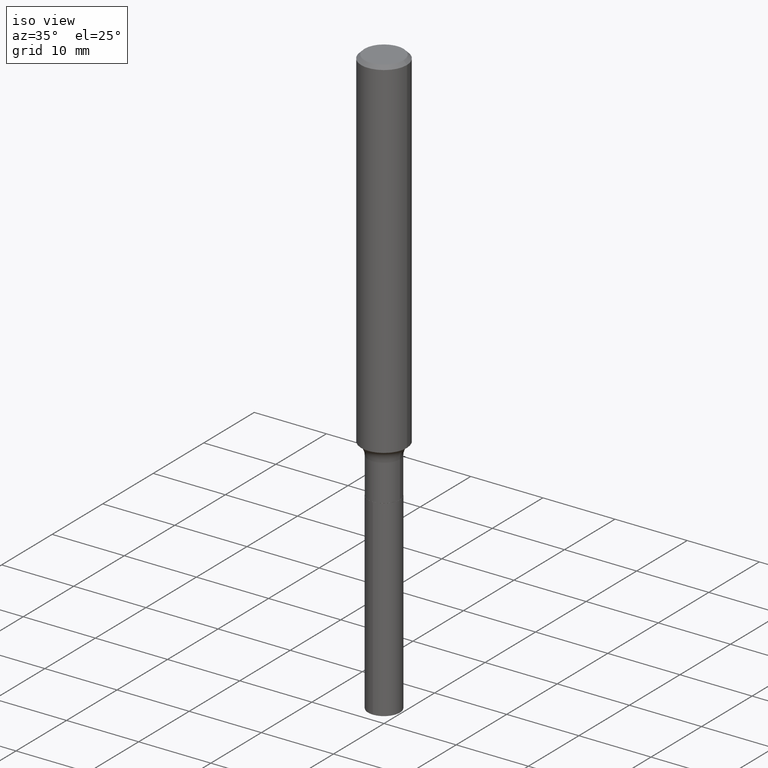
[diagram: clean part render]
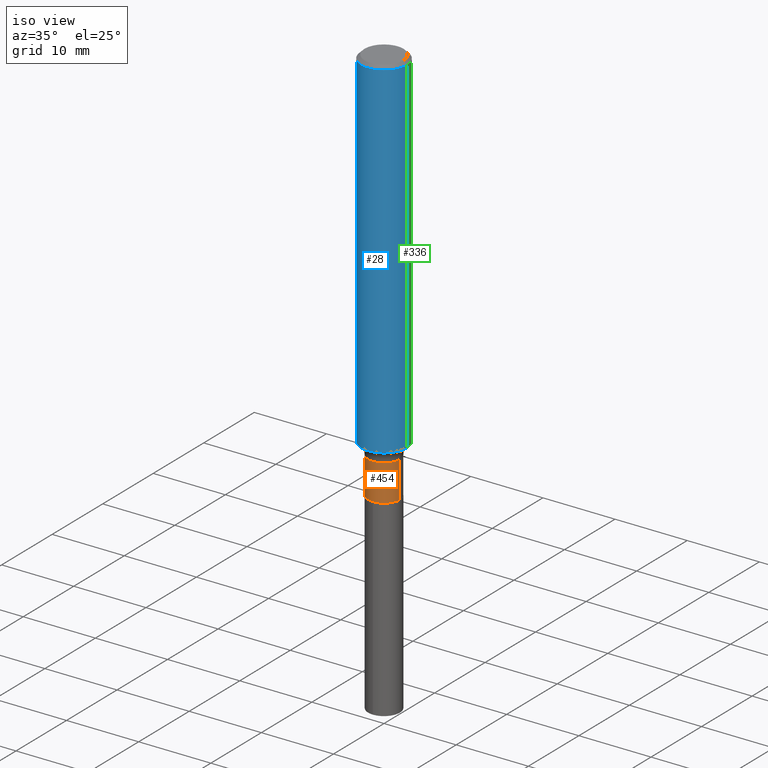
[diagram: same view with three faces highlighted in distinct colors, each labeled with its STEP entity id]
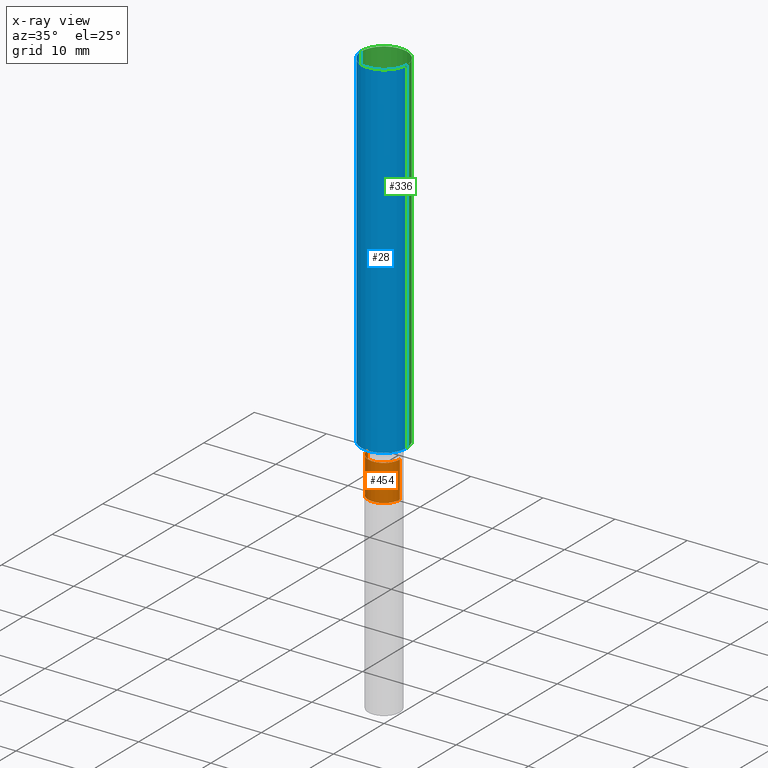
[diagram: x-ray of the same camera — body ghosted, the three highlighted faces saturated]
A machine part, iso view with three faces highlighted in distinct colors.
The next image is the same camera in x-ray (body ghosted, the three faces saturated) — at least one of them is partly hidden behind the body in this view.
Their STEP definitions:

[orange] entity #454 — the highlighted cylindrical surface (edge-blend (fillet) strip) has radius 2.1971 mm, axis along (-0, 0, 1).
#7 = DIRECTION ( 'NONE',  ( -2.445468806185136597E-29, 3.491481338843145583E-15, 1.000000000000000000 ) ) ;
#25 = DIRECTION ( 'NONE',  ( 1.000000000000000000, -6.982962677686266711E-15, 4.876176775795935793E-29 ) ) ;
#32 = CARTESIAN_POINT ( 'NONE',  ( -0.08649999999999997968, 6.146194664324865164E-16, -4.254878853070492988E-30 ) ) ;
#46 = FACE_OUTER_BOUND ( 'NONE', #347, .T. ) ;
#61 = CARTESIAN_POINT ( 'NONE',  ( 5.312780981437210108E-29, -7.585243208636733562E-15, -2.172500000000000320 ) ) ;
#64 = DIRECTION ( 'NONE',  ( -2.445468806185136877E-29, 3.491481338843145188E-15, 1.000000000000000000 ) ) ;
#76 = AXIS2_PLACEMENT_3D ( 'NONE', #317, #101, #213 ) ;
#85 = VERTEX_POINT ( 'NONE', #328 ) ;
#94 = VERTEX_POINT ( 'NONE', #207 ) ;
#101 = DIRECTION ( 'NONE',  ( -2.445468806185136597E-29, 3.491481338843145583E-15, 1.000000000000000000 ) ) ;
#107 = CARTESIAN_POINT ( 'NONE',  ( 0.08649999999999997968, -6.040262716198619285E-16, 4.217892911063483312E-30 ) ) ;
#138 = EDGE_CURVE ( 'NONE', #94, #194, #290, .T. ) ;
#171 = EDGE_CURVE ( 'NONE', #85, #459, #240, .T. ) ;
#192 = VECTOR ( 'NONE', #64, 39.37007874015748143 ) ;
#194 = VERTEX_POINT ( 'NONE', #286 ) ;
#196 = CYLINDRICAL_SURFACE ( 'NONE', #269, 0.08649999999999997968 ) ;
#199 = EDGE_CURVE ( 'NONE', #459, #194, #279, .T. ) ;
#207 = CARTESIAN_POINT ( 'NONE',  ( -0.08649999999999996581, -6.624094219324065275E-15, -1.973999999999999977 ) ) ;
#213 = DIRECTION ( 'NONE',  ( 1.000000000000000000, -6.982962677686261977E-15, 0.000000000000000000 ) ) ;
#240 = CIRCLE ( 'NONE', #304, 0.08649999999999997968 ) ;
#242 = DIRECTION ( 'NONE',  ( -2.445468806185136877E-29, 3.491481338843145188E-15, 1.000000000000000000 ) ) ;
#269 = AXIS2_PLACEMENT_3D ( 'NONE', #341, #7, #25 ) ;
#274 = VECTOR ( 'NONE', #242, 39.37007874015748143 ) ;
#277 = ORIENTED_EDGE ( 'NONE', *, *, #138, .F. ) ;
#279 = LINE ( 'NONE', #107, #274 ) ;
#286 = CARTESIAN_POINT ( 'NONE',  ( 0.08649999999999996581, -7.496210434496231358E-15, -1.973999999999999977 ) ) ;
#290 = CIRCLE ( 'NONE', #76, 0.08649999999999996581 ) ;
#304 = AXIS2_PLACEMENT_3D ( 'NONE', #61, #469, #464 ) ;
#317 = CARTESIAN_POINT ( 'NONE',  ( 4.827355423409459288E-29, -6.892184162876369824E-15, -1.973999999999999977 ) ) ;
#328 = CARTESIAN_POINT ( 'NONE',  ( -0.08649999999999997968, -6.624094219324065275E-15, -2.172500000000000320 ) ) ;
#341 = CARTESIAN_POINT ( 'NONE',  ( 0.000000000000000000, 0.000000000000000000, 0.000000000000000000 ) ) ;
#347 = EDGE_LOOP ( 'NONE', ( #351, #396, #393, #277 ) ) ;
#351 = ORIENTED_EDGE ( 'NONE', *, *, #474, .F. ) ;
#393 = ORIENTED_EDGE ( 'NONE', *, *, #199, .T. ) ;
#396 = ORIENTED_EDGE ( 'NONE', *, *, #171, .T. ) ;
#403 = LINE ( 'NONE', #32, #192 ) ;
#410 = CARTESIAN_POINT ( 'NONE',  ( 0.08649999999999997968, -8.189269480256595885E-15, -2.172500000000000320 ) ) ;
#454 = ADVANCED_FACE ( 'NONE', ( #46 ), #196, .T. ) ;
#459 = VERTEX_POINT ( 'NONE', #410 ) ;
#464 = DIRECTION ( 'NONE',  ( 1.000000000000000000, -6.982962677686272233E-15, 0.000000000000000000 ) ) ;
#469 = DIRECTION ( 'NONE',  ( -2.445468806185136597E-29, 3.491481338843145583E-15, 1.000000000000000000 ) ) ;
#474 = EDGE_CURVE ( 'NONE', #85, #94, #403, .T. ) ;

[blue] entity #28 — the highlighted cylindrical surface (edge-blend (fillet) strip) has radius 3.175 mm, axis along (-0, 0, 1).
#18 = CARTESIAN_POINT ( 'NONE',  ( 0.1250000000000001388, -8.728703347107843249E-16, 6.095220969744926748E-30 ) ) ;
#24 = CYLINDRICAL_SURFACE ( 'NONE', #68, 0.1250000000000001388 ) ;
#26 = CARTESIAN_POINT ( 'NONE',  ( -0.1250000000000001388, 8.881784197001262184E-16, -6.148668862818638533E-30 ) ) ;
#27 = DIRECTION ( 'NONE',  ( -2.445468806185136597E-29, 3.491481338843145583E-15, 1.000000000000000000 ) ) ;
#28 = ADVANCED_FACE ( 'NONE', ( #360 ), #24, .T. ) ;
#51 = VERTEX_POINT ( 'NONE', #330 ) ;
#68 = AXIS2_PLACEMENT_3D ( 'NONE', #111, #27, #222 ) ;
#77 = EDGE_CURVE ( 'NONE', #371, #99, #227, .T. ) ;
#89 = DIRECTION ( 'NONE',  ( 1.000000000000000000, -6.982962677686266711E-15, 0.000000000000000000 ) ) ;
#98 = DIRECTION ( 'NONE',  ( -2.445468806185136597E-29, 3.491481338843145583E-15, 1.000000000000000000 ) ) ;
#99 = VERTEX_POINT ( 'NONE', #404 ) ;
#108 = EDGE_CURVE ( 'NONE', #99, #51, #437, .T. ) ;
#111 = CARTESIAN_POINT ( 'NONE',  ( 0.000000000000000000, 0.000000000000000000, 0.000000000000000000 ) ) ;
#160 = EDGE_CURVE ( 'NONE', #371, #444, #321, .T. ) ;
#167 = AXIS2_PLACEMENT_3D ( 'NONE', #434, #98, #89 ) ;
#191 = AXIS2_PLACEMENT_3D ( 'NONE', #435, #340, #461 ) ;
#211 = EDGE_LOOP ( 'NONE', ( #217, #214, #294, #309 ) ) ;
#214 = ORIENTED_EDGE ( 'NONE', *, *, #77, .T. ) ;
#217 = ORIENTED_EDGE ( 'NONE', *, *, #160, .F. ) ;
#220 = EDGE_CURVE ( 'NONE', #444, #51, #298, .T. ) ;
#222 = DIRECTION ( 'NONE',  ( 1.000000000000000000, -6.982962677686266711E-15, 4.876176775795935793E-29 ) ) ;
#227 = CIRCLE ( 'NONE', #191, 0.1250000000000002776 ) ;
#252 = DIRECTION ( 'NONE',  ( -2.445468806185136877E-29, 3.491481338843145188E-15, 1.000000000000000000 ) ) ;
#294 = ORIENTED_EDGE ( 'NONE', *, *, #108, .T. ) ;
#298 = CIRCLE ( 'NONE', #167, 0.1250000000000000000 ) ;
#309 = ORIENTED_EDGE ( 'NONE', *, *, #220, .F. ) ;
#321 = LINE ( 'NONE', #26, #468 ) ;
#330 = CARTESIAN_POINT ( 'NONE',  ( 0.1250000000000000000, -9.383356098140928781E-16, -0.01875000000000014155 ) ) ;
#340 = DIRECTION ( 'NONE',  ( -2.445468806185136597E-29, 3.491481338843145583E-15, 1.000000000000000000 ) ) ;
#350 = DIRECTION ( 'NONE',  ( -2.445468806185136877E-29, 3.491481338843145188E-15, 1.000000000000000000 ) ) ;
#360 = FACE_OUTER_BOUND ( 'NONE', #211, .T. ) ;
#371 = VERTEX_POINT ( 'NONE', #390 ) ;
#390 = CARTESIAN_POINT ( 'NONE',  ( -0.1250000000000003053, -5.769172798886545035E-15, -1.906741171583203887 ) ) ;
#404 = CARTESIAN_POINT ( 'NONE',  ( 0.1250000000000003053, -7.530221553297457550E-15, -1.906741171583203887 ) ) ;
#431 = VECTOR ( 'NONE', #350, 39.37007874015748143 ) ;
#434 = CARTESIAN_POINT ( 'NONE',  ( 4.585254011597165626E-31, -6.546527510330947764E-17, -0.01875000000000014155 ) ) ;
#435 = CARTESIAN_POINT ( 'NONE',  ( 4.662876056575626099E-29, -6.657351218586672633E-15, -1.906741171583203887 ) ) ;
#436 = CARTESIAN_POINT ( 'NONE',  ( -0.1250000000000000000, -2.473229827144862896E-15, -0.01875000000000014155 ) ) ;
#437 = LINE ( 'NONE', #18, #431 ) ;
#444 = VERTEX_POINT ( 'NONE', #436 ) ;
#461 = DIRECTION ( 'NONE',  ( 1.000000000000000000, -6.982962677686270655E-15, 0.000000000000000000 ) ) ;
#468 = VECTOR ( 'NONE', #252, 39.37007874015748143 ) ;

[green] entity #336 — the highlighted cylindrical surface (edge-blend (fillet) strip) has radius 3.175 mm, axis along (-0, 0, 1).
#18 = CARTESIAN_POINT ( 'NONE',  ( 0.1250000000000001388, -8.728703347107843249E-16, 6.095220969744926748E-30 ) ) ;
#26 = CARTESIAN_POINT ( 'NONE',  ( -0.1250000000000001388, 8.881784197001262184E-16, -6.148668862818638533E-30 ) ) ;
#51 = VERTEX_POINT ( 'NONE', #330 ) ;
#57 = AXIS2_PLACEMENT_3D ( 'NONE', #257, #331, #364 ) ;
#60 = DIRECTION ( 'NONE',  ( -2.445468806185136597E-29, 3.491481338843145583E-15, 1.000000000000000000 ) ) ;
#99 = VERTEX_POINT ( 'NONE', #404 ) ;
#100 = CYLINDRICAL_SURFACE ( 'NONE', #342, 0.1250000000000001388 ) ;
#108 = EDGE_CURVE ( 'NONE', #99, #51, #437, .T. ) ;
#132 = DIRECTION ( 'NONE',  ( -2.445468806185136597E-29, 3.491481338843145583E-15, 1.000000000000000000 ) ) ;
#141 = CIRCLE ( 'NONE', #338, 0.1250000000000002776 ) ;
#142 = DIRECTION ( 'NONE',  ( 1.000000000000000000, -6.982962677686270655E-15, 0.000000000000000000 ) ) ;
#147 = EDGE_CURVE ( 'NONE', #99, #371, #141, .T. ) ;
#160 = EDGE_CURVE ( 'NONE', #371, #444, #321, .T. ) ;
#168 = DIRECTION ( 'NONE',  ( 1.000000000000000000, -6.982962677686266711E-15, 4.876176775795935793E-29 ) ) ;
#235 = CARTESIAN_POINT ( 'NONE',  ( 0.000000000000000000, 0.000000000000000000, 0.000000000000000000 ) ) ;
#244 = FACE_OUTER_BOUND ( 'NONE', #293, .T. ) ;
#252 = DIRECTION ( 'NONE',  ( -2.445468806185136877E-29, 3.491481338843145188E-15, 1.000000000000000000 ) ) ;
#257 = CARTESIAN_POINT ( 'NONE',  ( 4.585254011597165626E-31, -6.546527510330947764E-17, -0.01875000000000014155 ) ) ;
#263 = ORIENTED_EDGE ( 'NONE', *, *, #108, .F. ) ;
#284 = ORIENTED_EDGE ( 'NONE', *, *, #492, .F. ) ;
#293 = EDGE_LOOP ( 'NONE', ( #397, #442, #284, #263 ) ) ;
#321 = LINE ( 'NONE', #26, #468 ) ;
#330 = CARTESIAN_POINT ( 'NONE',  ( 0.1250000000000000000, -9.383356098140928781E-16, -0.01875000000000014155 ) ) ;
#331 = DIRECTION ( 'NONE',  ( -2.445468806185136597E-29, 3.491481338843145583E-15, 1.000000000000000000 ) ) ;
#336 = ADVANCED_FACE ( 'NONE', ( #244 ), #100, .T. ) ;
#338 = AXIS2_PLACEMENT_3D ( 'NONE', #441, #60, #142 ) ;
#342 = AXIS2_PLACEMENT_3D ( 'NONE', #235, #132, #168 ) ;
#350 = DIRECTION ( 'NONE',  ( -2.445468806185136877E-29, 3.491481338843145188E-15, 1.000000000000000000 ) ) ;
#364 = DIRECTION ( 'NONE',  ( 1.000000000000000000, -6.982962677686266711E-15, 0.000000000000000000 ) ) ;
#371 = VERTEX_POINT ( 'NONE', #390 ) ;
#390 = CARTESIAN_POINT ( 'NONE',  ( -0.1250000000000003053, -5.769172798886545035E-15, -1.906741171583203887 ) ) ;
#397 = ORIENTED_EDGE ( 'NONE', *, *, #147, .T. ) ;
#404 = CARTESIAN_POINT ( 'NONE',  ( 0.1250000000000003053, -7.530221553297457550E-15, -1.906741171583203887 ) ) ;
#422 = CIRCLE ( 'NONE', #57, 0.1250000000000000000 ) ;
#431 = VECTOR ( 'NONE', #350, 39.37007874015748143 ) ;
#436 = CARTESIAN_POINT ( 'NONE',  ( -0.1250000000000000000, -2.473229827144862896E-15, -0.01875000000000014155 ) ) ;
#437 = LINE ( 'NONE', #18, #431 ) ;
#441 = CARTESIAN_POINT ( 'NONE',  ( 4.662876056575626099E-29, -6.657351218586672633E-15, -1.906741171583203887 ) ) ;
#442 = ORIENTED_EDGE ( 'NONE', *, *, #160, .T. ) ;
#444 = VERTEX_POINT ( 'NONE', #436 ) ;
#468 = VECTOR ( 'NONE', #252, 39.37007874015748143 ) ;
#492 = EDGE_CURVE ( 'NONE', #51, #444, #422, .T. ) ;